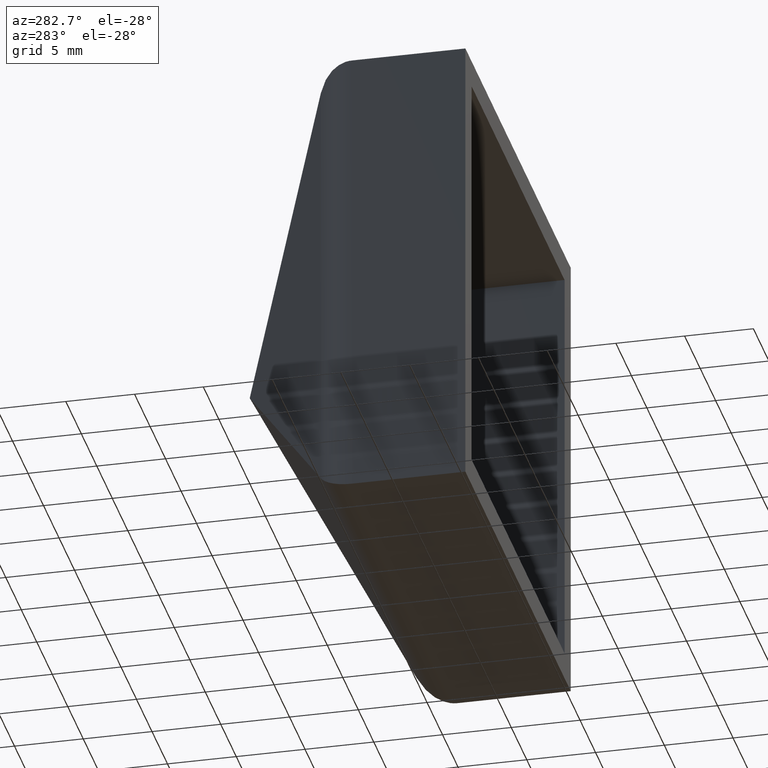
[diagram: clean part render]
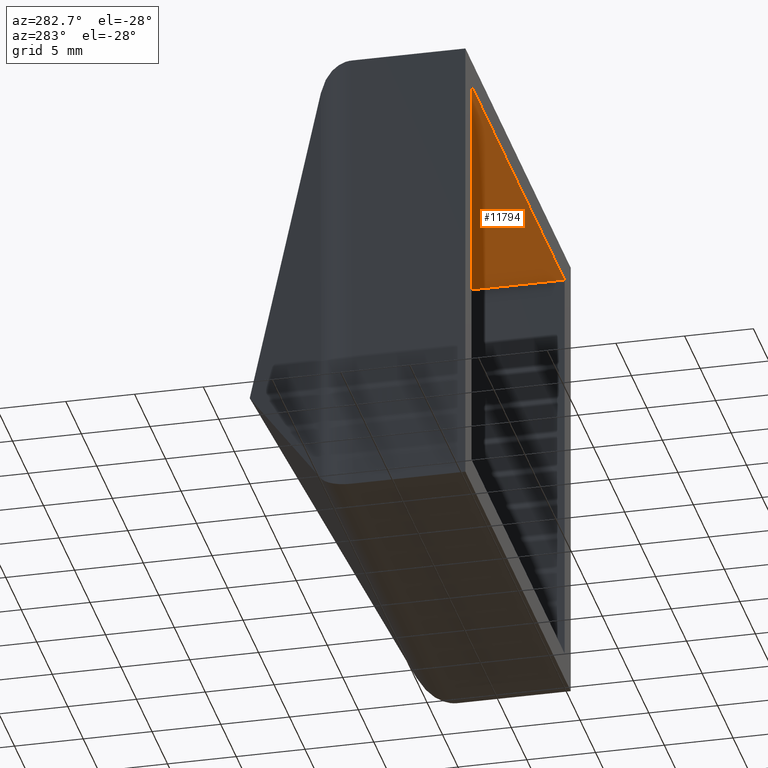
[diagram: same view with one face highlighted and labeled with its STEP entity id]
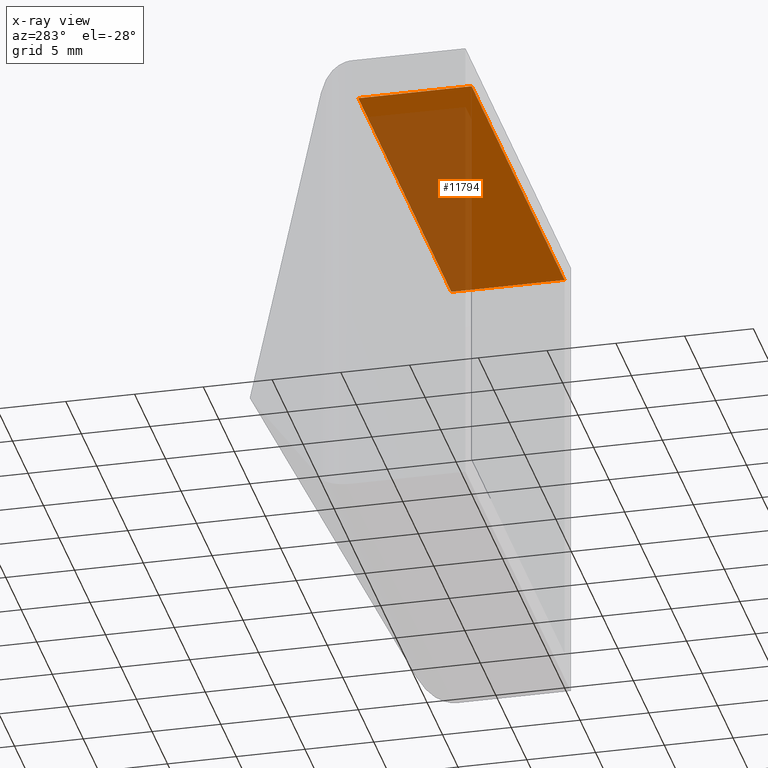
[diagram: x-ray of the same camera — body ghosted, the highlighted face saturated]
A machine part, auxiliary view. The second image highlights one B-rep face of the part: STEP entity #11794.
The next image is the same camera in x-ray: the body ghosted, the highlighted face saturated — about 49% of this face is hidden behind the body in this view.
In plain terms, the highlighted planar face has unit normal (0, 0, -1).
Its self-contained STEP definition (entity closure, byte-faithful):
#421 = VECTOR ( 'NONE', #11705, 1000.000000000000000 ) ;
#1321 = DIRECTION ( 'NONE',  ( 0.000000000000000000, 0.000000000000000000, -1.000000000000000000 ) ) ;
#1550 = AXIS2_PLACEMENT_3D ( 'NONE', #3254, #1321, #12025 ) ;
#1702 = VERTEX_POINT ( 'NONE', #3815 ) ;
#2611 = EDGE_CURVE ( 'NONE', #2696, #1702, #8196, .T. ) ;
#2696 = VERTEX_POINT ( 'NONE', #3277 ) ;
#3086 = EDGE_CURVE ( 'NONE', #1702, #8856, #5903, .T. ) ;
#3254 = CARTESIAN_POINT ( 'NONE',  ( -16.99999999999999289, 25.00000000000000000, 15.00000000000000178 ) ) ;
#3277 = CARTESIAN_POINT ( 'NONE',  ( -14.99999999999999289, 8.241140577790011079, 15.00000000000000711 ) ) ;
#3815 = CARTESIAN_POINT ( 'NONE',  ( 15.00000000000000711, 8.241140577790011079, 14.99999999999999645 ) ) ;
#4321 = ORIENTED_EDGE ( 'NONE', *, *, #3086, .T. ) ;
#4331 = EDGE_CURVE ( 'NONE', #2696, #11407, #9987, .T. ) ;
#4431 = CARTESIAN_POINT ( 'NONE',  ( -14.99999999999999467, 0.000000000000000000, 15.00000000000000178 ) ) ;
#4826 = CARTESIAN_POINT ( 'NONE',  ( 15.00000000000000888, 0.000000000000000000, 15.00000000000000178 ) ) ;
#4948 = ORIENTED_EDGE ( 'NONE', *, *, #2611, .T. ) ;
#5607 = VECTOR ( 'NONE', #10901, 1000.000000000000000 ) ;
#5738 = CARTESIAN_POINT ( 'NONE',  ( -14.99999999999999645, 25.00000000000000000, 15.00000000000000178 ) ) ;
#5903 = LINE ( 'NONE', #7928, #421 ) ;
#6206 = VECTOR ( 'NONE', #10902, 1000.000000000000000 ) ;
#6755 = CARTESIAN_POINT ( 'NONE',  ( -16.99999999999999289, 0.000000000000000000, 15.00000000000000178 ) ) ;
#7132 = CARTESIAN_POINT ( 'NONE',  ( -17.00000000000001421, 8.241140577790009303, 15.00000000000001066 ) ) ;
#7342 = VECTOR ( 'NONE', #8700, 1000.000000000000000 ) ;
#7856 = ORIENTED_EDGE ( 'NONE', *, *, #10979, .F. ) ;
#7928 = CARTESIAN_POINT ( 'NONE',  ( 15.00000000000000888, 25.00000000000000000, 15.00000000000000000 ) ) ;
#8196 = LINE ( 'NONE', #7132, #5607 ) ;
#8700 = DIRECTION ( 'NONE',  ( 1.000000000000000000, -0.000000000000000000, 0.000000000000000000 ) ) ;
#8856 = VERTEX_POINT ( 'NONE', #4826 ) ;
#8896 = EDGE_LOOP ( 'NONE', ( #4948, #4321, #7856, #11516 ) ) ;
#9987 = LINE ( 'NONE', #5738, #6206 ) ;
#10035 = PLANE ( 'NONE',  #1550 ) ;
#10617 = LINE ( 'NONE', #6755, #7342 ) ;
#10901 = DIRECTION ( 'NONE',  ( 1.000000000000000000, -0.000000000000000000, -4.440892098500625176E-16 ) ) ;
#10902 = DIRECTION ( 'NONE',  ( 0.000000000000000000, -1.000000000000000000, 0.000000000000000000 ) ) ;
#10979 = EDGE_CURVE ( 'NONE', #11407, #8856, #10617, .T. ) ;
#11407 = VERTEX_POINT ( 'NONE', #4431 ) ;
#11516 = ORIENTED_EDGE ( 'NONE', *, *, #4331, .F. ) ;
#11705 = DIRECTION ( 'NONE',  ( 0.000000000000000000, -1.000000000000000000, 0.000000000000000000 ) ) ;
#11794 = ADVANCED_FACE ( 'NONE', ( #11813 ), #10035, .T. ) ;
#11813 = FACE_OUTER_BOUND ( 'NONE', #8896, .T. ) ;
#12025 = DIRECTION ( 'NONE',  ( -1.000000000000000000, 0.000000000000000000, -0.000000000000000000 ) ) ;